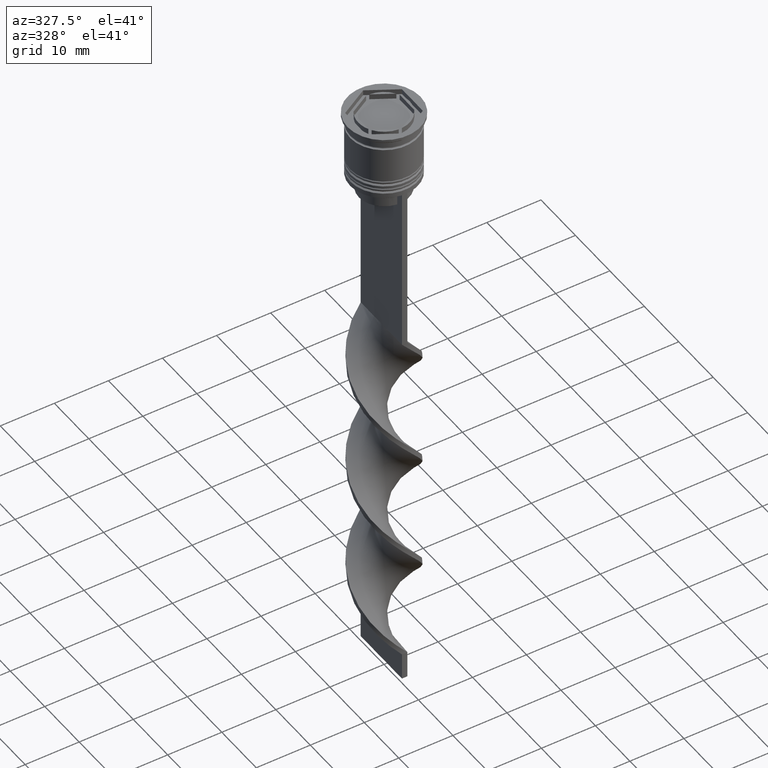
[diagram: clean part render]
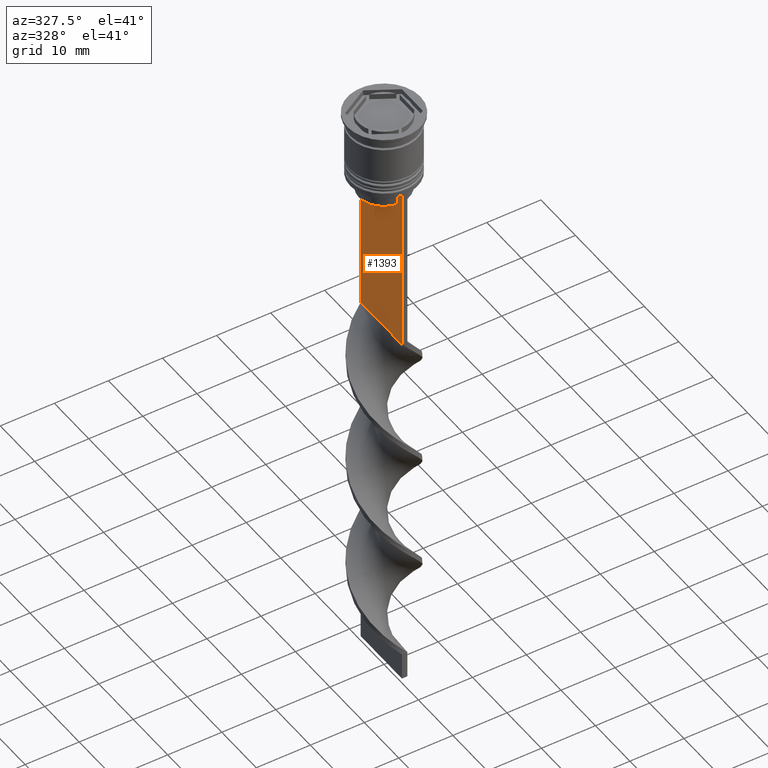
[diagram: same view with one face highlighted and labeled with its STEP entity id]
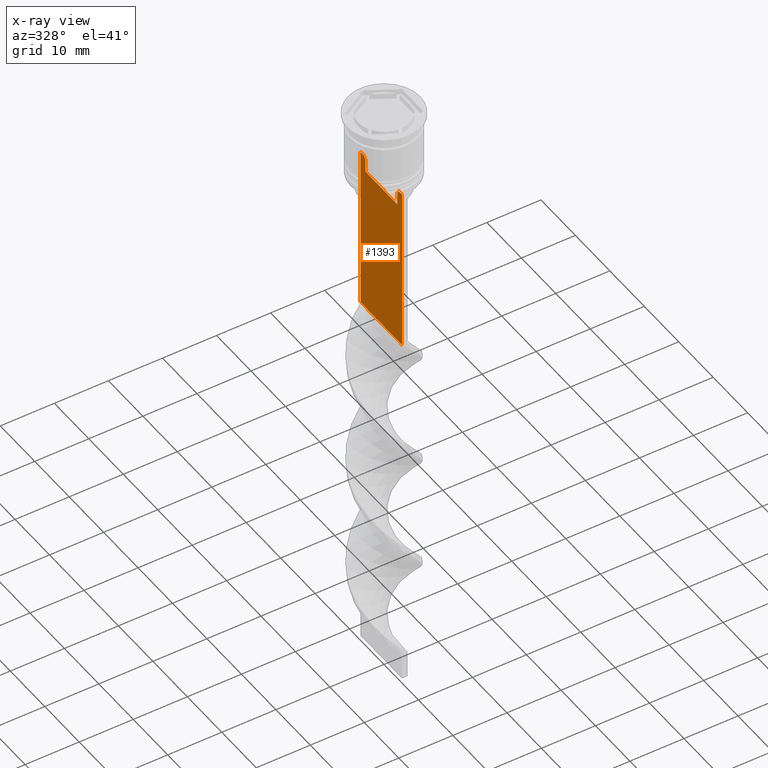
[diagram: x-ray of the same camera — body ghosted, the highlighted face saturated]
A machine part, auxiliary view. The second image highlights one B-rep face of the part: STEP entity #1393.
The next image is the same camera in x-ray: the body ghosted, the highlighted face saturated — about 0% of this face is hidden behind the body in this view.
In plain terms, the highlighted planar face has unit normal (-1, 0, 0).
Its self-contained STEP definition (entity closure, byte-faithful):
#21 = ORIENTED_EDGE ( 'NONE', *, *, #2270, .F. ) ;
#114 = VECTOR ( 'NONE', #1056, 1000.000000000000000 ) ;
#124 = VERTEX_POINT ( 'NONE', #1344 ) ;
#138 = VERTEX_POINT ( 'NONE', #1088 ) ;
#141 = CARTESIAN_POINT ( 'NONE',  ( -0.4999999999999997780, 4.790630915080666519, -12.83338087185995313 ) ) ;
#185 = CARTESIAN_POINT ( 'NONE',  ( -0.4999999999999997780, -4.790630799407576745, -12.83338098686239093 ) ) ;
#195 = DIRECTION ( 'NONE',  ( 0.000000000000000000, 0.000000000000000000, -1.000000000000000000 ) ) ;
#210 = LINE ( 'NONE', #1301, #1554 ) ;
#345 = B_SPLINE_CURVE_WITH_KNOTS ( 'NONE', 3,
 ( #1514, #185, #1276, #1565 ),
 .UNSPECIFIED., .F., .F.,
 ( 4, 4 ),
 ( 0.02203698174624551046, 0.02275222543365894301 ),
 .UNSPECIFIED. ) ;
#456 = VERTEX_POINT ( 'NONE', #2890 ) ;
#473 = CARTESIAN_POINT ( 'NONE',  ( -0.4999999999999997780, -6.000000000000000000, -0.4584054212077061097 ) ) ;
#657 = ORIENTED_EDGE ( 'NONE', *, *, #1828, .F. ) ;
#674 = VERTEX_POINT ( 'NONE', #2451 ) ;
#715 = PLANE ( 'NONE',  #2738 ) ;
#722 = CARTESIAN_POINT ( 'NONE',  ( -0.4999999999999997780, 5.125670687822231564, -12.50000000000000000 ) ) ;
#727 = CARTESIAN_POINT ( 'NONE',  ( -0.4999999999999997780, -6.000000000000000000, -0.4584054212077061097 ) ) ;
#729 = DIRECTION ( 'NONE',  ( 0.000000000000000000, 0.000000000000000000, 1.000000000000000000 ) ) ;
#789 = LINE ( 'NONE', #2369, #1612 ) ;
#859 = EDGE_CURVE ( 'NONE', #124, #1908, #1526, .T. ) ;
#944 = CARTESIAN_POINT ( 'NONE',  ( -0.4999999999999997780, 6.000000000000001776, -12.50000000000000000 ) ) ;
#977 = VECTOR ( 'NONE', #2822, 1000.000000000000000 ) ;
#995 = EDGE_LOOP ( 'NONE', ( #1075, #3309, #1025, #2220, #1539, #657, #3422, #1931, #21, #1171 ) ) ;
#1023 = EDGE_CURVE ( 'NONE', #1955, #2825, #1304, .T. ) ;
#1025 = ORIENTED_EDGE ( 'NONE', *, *, #1703, .T. ) ;
#1030 = LINE ( 'NONE', #2114, #2174 ) ;
#1056 = DIRECTION ( 'NONE',  ( 0.000000000000000000, -1.000000000000000000, 0.000000000000000000 ) ) ;
#1075 = ORIENTED_EDGE ( 'NONE', *, *, #2214, .F. ) ;
#1088 = CARTESIAN_POINT ( 'NONE',  ( -0.4999999999999997780, -6.000000000000000000, -43.50000000000000000 ) ) ;
#1164 = CARTESIAN_POINT ( 'NONE',  ( -0.4999999999999997780, 4.958169823806762189, -12.66670956677067750 ) ) ;
#1171 = ORIENTED_EDGE ( 'NONE', *, *, #2038, .F. ) ;
#1276 = CARTESIAN_POINT ( 'NONE',  ( -0.4999999999999997780, -4.958169719475986170, -12.66670967060858111 ) ) ;
#1301 = CARTESIAN_POINT ( 'NONE',  ( -0.4999999999999997780, 4.650000000000001243, -15.50000000000000000 ) ) ;
#1304 = LINE ( 'NONE', #1592, #114 ) ;
#1344 = CARTESIAN_POINT ( 'NONE',  ( -0.4999999999999997780, -4.623040125285526436, -15.50000000000000000 ) ) ;
#1393 = ADVANCED_FACE ( 'NONE', ( #1787 ), #715, .T. ) ;
#1470 = EDGE_CURVE ( 'NONE', #1908, #2838, #345, .T. ) ;
#1488 = CARTESIAN_POINT ( 'NONE',  ( -0.4999999999999997780, -4.623040125285526436, -13.00000000000000178 ) ) ;
#1494 = VECTOR ( 'NONE', #195, 1000.000000000000000 ) ;
#1514 = CARTESIAN_POINT ( 'NONE',  ( -0.4999999999999997780, -4.623040125285526436, -13.00000000000000178 ) ) ;
#1526 = LINE ( 'NONE', #3336, #977 ) ;
#1530 = DIRECTION ( 'NONE',  ( 0.000000000000000000, -1.000000000000000000, 0.000000000000000000 ) ) ;
#1539 = ORIENTED_EDGE ( 'NONE', *, *, #2754, .F. ) ;
#1543 = VERTEX_POINT ( 'NONE', #3352 ) ;
#1554 = VECTOR ( 'NONE', #3193, 1000.000000000000000 ) ;
#1565 = CARTESIAN_POINT ( 'NONE',  ( -0.4999999999999997780, -5.125670687822231564, -12.50000000000000000 ) ) ;
#1572 = DIRECTION ( 'NONE',  ( 0.000000000000000000, 0.000000000000000000, -1.000000000000000000 ) ) ;
#1592 = CARTESIAN_POINT ( 'NONE',  ( -0.4999999999999997780, -6.000000000000000000, -12.50000000000000000 ) ) ;
#1611 = CARTESIAN_POINT ( 'NONE',  ( -0.4999999999999997780, -5.125670687822231564, -12.50000000000000000 ) ) ;
#1612 = VECTOR ( 'NONE', #1572, 1000.000000000000000 ) ;
#1703 = EDGE_CURVE ( 'NONE', #1955, #1543, #789, .T. ) ;
#1731 = VECTOR ( 'NONE', #2627, 1000.000000000000000 ) ;
#1753 = EDGE_CURVE ( 'NONE', #138, #1543, #2408, .T. ) ;
#1758 = CARTESIAN_POINT ( 'NONE',  ( -0.4999999999999997780, 5.125670687822231564, -12.50000000000000000 ) ) ;
#1787 = FACE_OUTER_BOUND ( 'NONE', #995, .T. ) ;
#1801 = VERTEX_POINT ( 'NONE', #2775 ) ;
#1827 = CARTESIAN_POINT ( 'NONE',  ( -0.4999999999999997780, 4.623040125285526436, 0.000000000000000000 ) ) ;
#1828 = EDGE_CURVE ( 'NONE', #2838, #1801, #1030, .T. ) ;
#1908 = VERTEX_POINT ( 'NONE', #1488 ) ;
#1931 = ORIENTED_EDGE ( 'NONE', *, *, #859, .F. ) ;
#1955 = VERTEX_POINT ( 'NONE', #944 ) ;
#2038 = EDGE_CURVE ( 'NONE', #674, #456, #2886, .T. ) ;
#2093 = LINE ( 'NONE', #727, #1731 ) ;
#2114 = CARTESIAN_POINT ( 'NONE',  ( -0.4999999999999997780, -6.000000000000000000, -12.50000000000000000 ) ) ;
#2174 = VECTOR ( 'NONE', #1530, 1000.000000000000000 ) ;
#2214 = EDGE_CURVE ( 'NONE', #2825, #674, #2918, .T. ) ;
#2220 = ORIENTED_EDGE ( 'NONE', *, *, #1753, .F. ) ;
#2247 = CARTESIAN_POINT ( 'NONE',  ( -0.4999999999999997780, 4.623040125285526436, -13.00000000000000178 ) ) ;
#2270 = EDGE_CURVE ( 'NONE', #456, #124, #210, .T. ) ;
#2369 = CARTESIAN_POINT ( 'NONE',  ( -0.4999999999999997780, 6.000000000000000888, -0.4584054212077061097 ) ) ;
#2408 = LINE ( 'NONE', #2934, #2459 ) ;
#2451 = CARTESIAN_POINT ( 'NONE',  ( -0.4999999999999997780, 4.623040125285526436, -13.00000000000000178 ) ) ;
#2459 = VECTOR ( 'NONE', #2835, 1000.000000000000000 ) ;
#2627 = DIRECTION ( 'NONE',  ( 0.000000000000000000, 0.000000000000000000, -1.000000000000000000 ) ) ;
#2738 = AXIS2_PLACEMENT_3D ( 'NONE', #473, #2877, #729 ) ;
#2754 = EDGE_CURVE ( 'NONE', #1801, #138, #2093, .T. ) ;
#2775 = CARTESIAN_POINT ( 'NONE',  ( -0.4999999999999997780, -6.000000000000000000, -12.50000000000000000 ) ) ;
#2822 = DIRECTION ( 'NONE',  ( -0.000000000000000000, -0.000000000000000000, 1.000000000000000000 ) ) ;
#2825 = VERTEX_POINT ( 'NONE', #722 ) ;
#2835 = DIRECTION ( 'NONE',  ( 0.000000000000000000, 1.000000000000000000, 0.000000000000000000 ) ) ;
#2838 = VERTEX_POINT ( 'NONE', #1611 ) ;
#2877 = DIRECTION ( 'NONE',  ( -1.000000000000000000, 0.000000000000000000, 0.000000000000000000 ) ) ;
#2886 = LINE ( 'NONE', #1827, #1494 ) ;
#2890 = CARTESIAN_POINT ( 'NONE',  ( -0.4999999999999997780, 4.623040125285526436, -15.50000000000000000 ) ) ;
#2918 = B_SPLINE_CURVE_WITH_KNOTS ( 'NONE', 3,
 ( #1758, #1164, #141, #2247 ),
 .UNSPECIFIED., .F., .F.,
 ( 4, 4 ),
 ( 0.008759809102772707357, 0.009468778395565351919 ),
 .UNSPECIFIED. ) ;
#2934 = CARTESIAN_POINT ( 'NONE',  ( -0.4999999999999997780, -6.000000000000000000, -43.50000000000000000 ) ) ;
#3193 = DIRECTION ( 'NONE',  ( 0.000000000000000000, -1.000000000000000000, 0.000000000000000000 ) ) ;
#3309 = ORIENTED_EDGE ( 'NONE', *, *, #1023, .F. ) ;
#3336 = CARTESIAN_POINT ( 'NONE',  ( -0.4999999999999997780, -4.623040125285526436, 0.000000000000000000 ) ) ;
#3352 = CARTESIAN_POINT ( 'NONE',  ( -0.4999999999999997780, 6.000000000000000888, -43.50000000000000000 ) ) ;
#3422 = ORIENTED_EDGE ( 'NONE', *, *, #1470, .F. ) ;